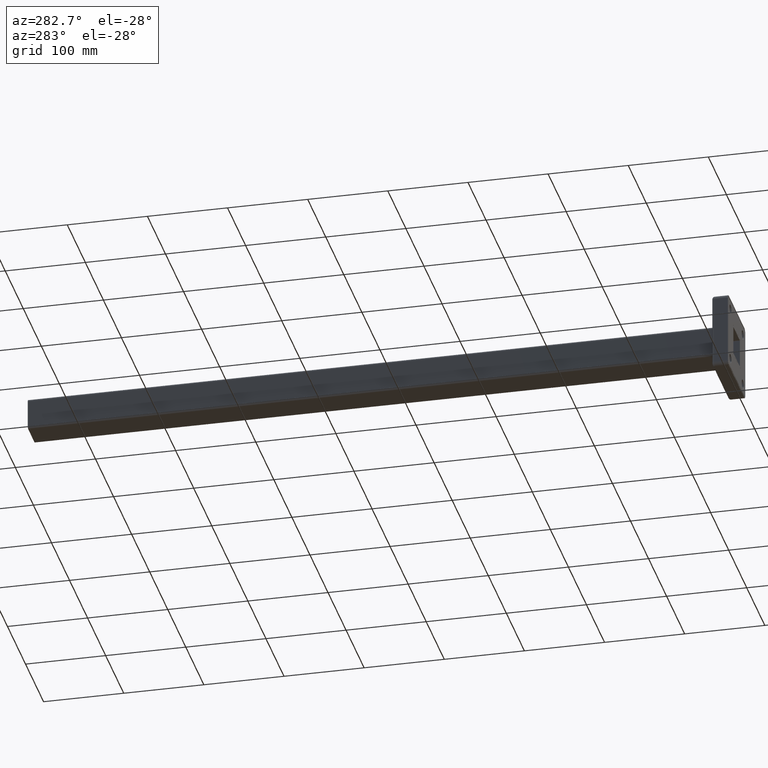
[diagram: clean part render]
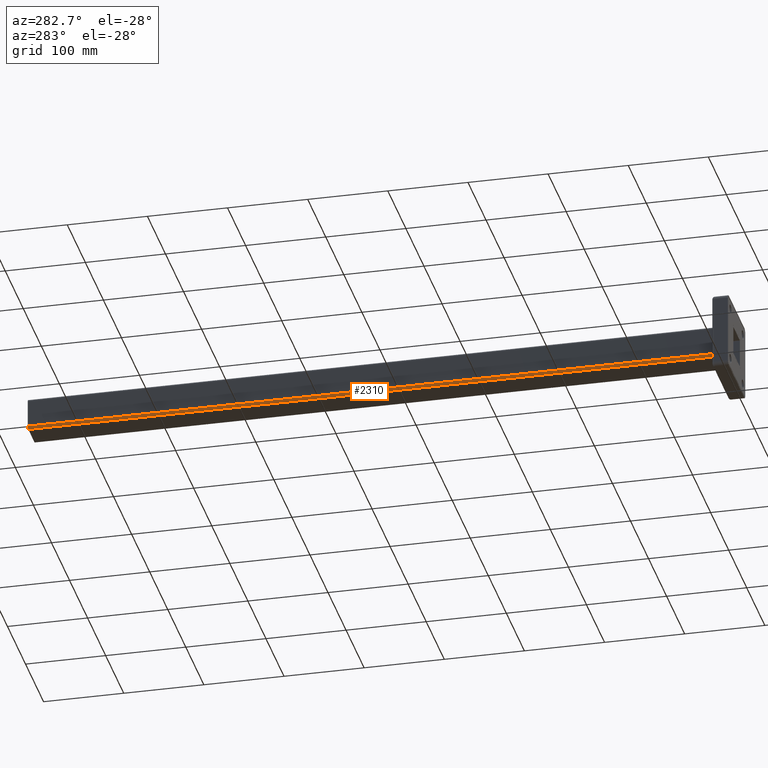
[diagram: same view with one face highlighted and labeled with its STEP entity id]
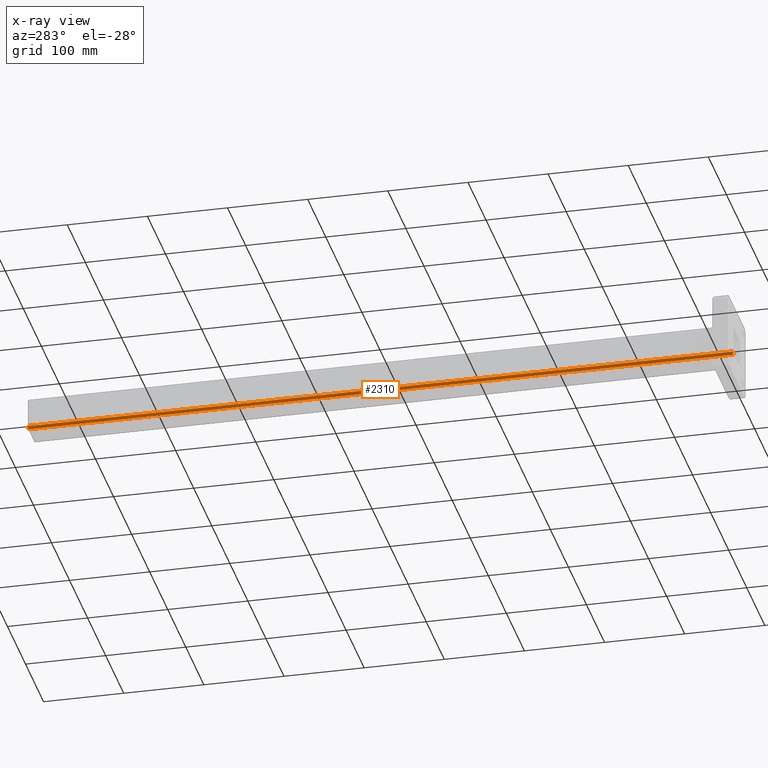
[diagram: x-ray of the same camera — body ghosted, the highlighted face saturated]
A machine part, auxiliary view. The second image highlights one B-rep face of the part: STEP entity #2310.
The next image is the same camera in x-ray: the body ghosted, the highlighted face saturated — about 0% of this face is hidden behind the body in this view.
In plain terms, the highlighted cylindrical surface (edge-blend (fillet) strip) has radius 3 mm, axis along (0, -1, 0).
Its self-contained STEP definition (entity closure, byte-faithful):
#17 = CARTESIAN_POINT ( 'NONE',  ( -17.00000000000000400, 880.0000000000000000, -20.00000000000000400 ) ) ;
#67 = EDGE_CURVE ( 'NONE', #170, #1700, #198, .T. ) ;
#116 = CARTESIAN_POINT ( 'NONE',  ( -17.00000000000000400, 0.0000000000000000000, -17.00000000000000400 ) ) ;
#168 = EDGE_CURVE ( 'NONE', #1839, #3510, #1571, .T. ) ;
#170 = VERTEX_POINT ( 'NONE', #639 ) ;
#198 = LINE ( 'NONE', #2989, #3836 ) ;
#283 = CIRCLE ( 'NONE', #2441, 2.999999999999999100 ) ;
#469 = ORIENTED_EDGE ( 'NONE', *, *, #2549, .F. ) ;
#639 = CARTESIAN_POINT ( 'NONE',  ( -20.00000000000000400, 880.0000000000000000, -17.00000000000000400 ) ) ;
#842 = EDGE_CURVE ( 'NONE', #3510, #170, #3543, .T. ) ;
#956 = CARTESIAN_POINT ( 'NONE',  ( -17.00000000000000400, 880.0000000000000000, -17.00000000000000400 ) ) ;
#991 = DIRECTION ( 'NONE',  ( -0.0000000000000000000, -1.000000000000000000, -0.0000000000000000000 ) ) ;
#1020 = ORIENTED_EDGE ( 'NONE', *, *, #168, .F. ) ;
#1030 = DIRECTION ( 'NONE',  ( 0.0000000000000000000, 0.0000000000000000000, 1.000000000000000000 ) ) ;
#1184 = EDGE_LOOP ( 'NONE', ( #3866, #1020, #469, #3532 ) ) ;
#1209 = AXIS2_PLACEMENT_3D ( 'NONE', #3907, #1481, #3644 ) ;
#1234 = DIRECTION ( 'NONE',  ( -0.0000000000000000000, 1.000000000000000000, -0.0000000000000000000 ) ) ;
#1424 = VECTOR ( 'NONE', #1234, 1000.000000000000000 ) ;
#1481 = DIRECTION ( 'NONE',  ( 0.0000000000000000000, -1.000000000000000000, 0.0000000000000000000 ) ) ;
#1534 = DIRECTION ( 'NONE',  ( 0.0000000000000000000, 0.0000000000000000000, 1.000000000000000000 ) ) ;
#1556 = CARTESIAN_POINT ( 'NONE',  ( -17.00000000000000400, 880.0000000000000000, -20.00000000000000400 ) ) ;
#1571 = LINE ( 'NONE', #1556, #1424 ) ;
#1700 = VERTEX_POINT ( 'NONE', #2136 ) ;
#1706 = AXIS2_PLACEMENT_3D ( 'NONE', #956, #1878, #1534 ) ;
#1839 = VERTEX_POINT ( 'NONE', #2522 ) ;
#1878 = DIRECTION ( 'NONE',  ( 0.0000000000000000000, 1.000000000000000000, 0.0000000000000000000 ) ) ;
#2136 = CARTESIAN_POINT ( 'NONE',  ( -20.00000000000000400, 0.0000000000000000000, -17.00000000000000400 ) ) ;
#2310 = ADVANCED_FACE ( 'NONE', ( #2382 ), #3676, .T. ) ;
#2382 = FACE_OUTER_BOUND ( 'NONE', #1184, .T. ) ;
#2441 = AXIS2_PLACEMENT_3D ( 'NONE', #116, #991, #1030 ) ;
#2522 = CARTESIAN_POINT ( 'NONE',  ( -17.00000000000000400, 0.0000000000000000000, -20.00000000000000400 ) ) ;
#2549 = EDGE_CURVE ( 'NONE', #1700, #1839, #283, .T. ) ;
#2989 = CARTESIAN_POINT ( 'NONE',  ( -20.00000000000000400, 880.0000000000000000, -17.00000000000000400 ) ) ;
#3510 = VERTEX_POINT ( 'NONE', #17 ) ;
#3532 = ORIENTED_EDGE ( 'NONE', *, *, #67, .F. ) ;
#3543 = CIRCLE ( 'NONE', #1706, 2.999999999999999100 ) ;
#3644 = DIRECTION ( 'NONE',  ( 0.0000000000000000000, 0.0000000000000000000, -1.000000000000000000 ) ) ;
#3646 = DIRECTION ( 'NONE',  ( 0.0000000000000000000, -1.000000000000000000, 0.0000000000000000000 ) ) ;
#3676 = CYLINDRICAL_SURFACE ( 'NONE', #1209, 2.999999999999999100 ) ;
#3836 = VECTOR ( 'NONE', #3646, 1000.000000000000000 ) ;
#3866 = ORIENTED_EDGE ( 'NONE', *, *, #842, .F. ) ;
#3907 = CARTESIAN_POINT ( 'NONE',  ( -17.00000000000000400, 880.0000000000000000, -17.00000000000000400 ) ) ;